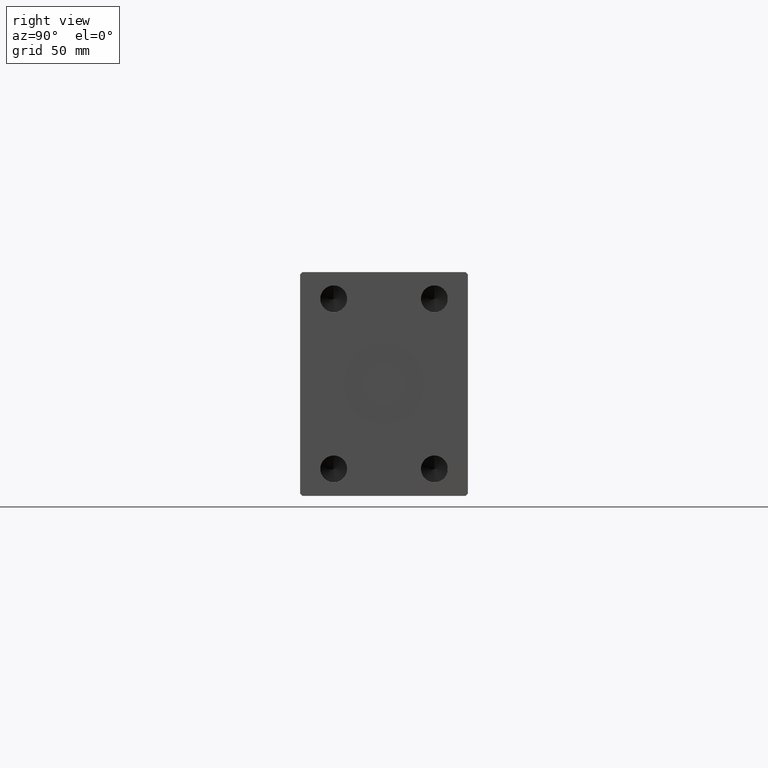
[diagram: clean part render]
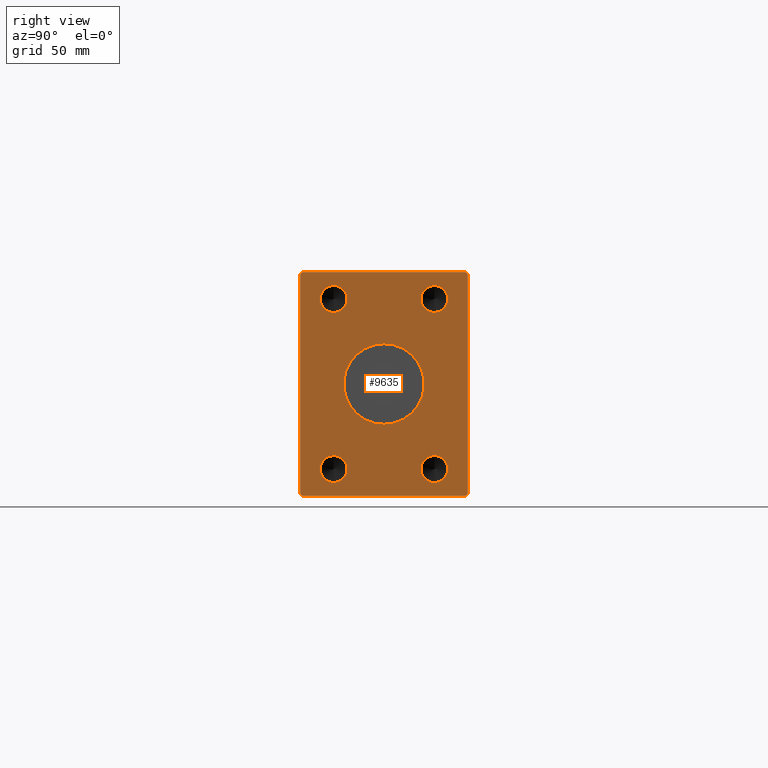
[diagram: same view with one face highlighted and labeled with its STEP entity id]
A machine part, right view. The second image highlights one B-rep face of the part: STEP entity #9635.
In plain terms, the highlighted planar face has unit normal (1, 0, 0).
Its self-contained STEP definition (entity closure, byte-faithful):
#472 = ORIENTED_EDGE ( 'NONE', *, *, #42329, .T. ) ;
#759 = EDGE_CURVE ( 'NONE', #37354, #40215, #26945, .T. ) ;
#867 = EDGE_CURVE ( 'NONE', #19377, #40171, #22664, .T. ) ;
#1045 = VERTEX_POINT ( 'NONE', #13690 ) ;
#1866 = ORIENTED_EDGE ( 'NONE', *, *, #759, .F. ) ;
#2047 = AXIS2_PLACEMENT_3D ( 'NONE', #17476, #31171, #21955 ) ;
#2261 = CARTESIAN_POINT ( 'NONE',  ( 262.0000000000000000, 37.50000000000000711, -49.00000000000000000 ) ) ;
#2478 = DIRECTION ( 'NONE',  ( 1.000000000000000000, -0.000000000000000000, -0.000000000000000000 ) ) ;
#2784 = DIRECTION ( 'NONE',  ( 1.000000000000000000, 0.000000000000000000, 0.000000000000000000 ) ) ;
#3154 = ORIENTED_EDGE ( 'NONE', *, *, #11692, .T. ) ;
#3195 = CARTESIAN_POINT ( 'NONE',  ( 262.0000000000000000, 36.50000000000000711, -50.00000000000000000 ) ) ;
#3367 = DIRECTION ( 'NONE',  ( 0.000000000000000000, -0.7071067811865474617, 0.7071067811865474617 ) ) ;
#3427 = VERTEX_POINT ( 'NONE', #37540 ) ;
#3794 = ORIENTED_EDGE ( 'NONE', *, *, #10537, .F. ) ;
#5177 = ORIENTED_EDGE ( 'NONE', *, *, #32614, .F. ) ;
#5633 = VERTEX_POINT ( 'NONE', #33251 ) ;
#5672 = CIRCLE ( 'NONE', #19322, 5.999999999999998224 ) ;
#5887 = AXIS2_PLACEMENT_3D ( 'NONE', #20162, #17678, #34976 ) ;
#5973 = CARTESIAN_POINT ( 'NONE',  ( 262.0000000000000000, 22.50000000000000000, -32.00000000000000000 ) ) ;
#6314 = CARTESIAN_POINT ( 'NONE',  ( 262.0000000000000000, -36.50000000000001421, 49.99999999999998579 ) ) ;
#6323 = VERTEX_POINT ( 'NONE', #24354 ) ;
#6595 = VERTEX_POINT ( 'NONE', #39508 ) ;
#6667 = ORIENTED_EDGE ( 'NONE', *, *, #39701, .T. ) ;
#7895 = CARTESIAN_POINT ( 'NONE',  ( 262.0000000000000000, 22.50000000000000000, -44.00000000000000000 ) ) ;
#7902 = ORIENTED_EDGE ( 'NONE', *, *, #36248, .F. ) ;
#8164 = EDGE_CURVE ( 'NONE', #36660, #5633, #9680, .T. ) ;
#8314 = CARTESIAN_POINT ( 'NONE',  ( 262.0000000000000000, -22.50000000000000000, -38.00000000000000711 ) ) ;
#8348 = LINE ( 'NONE', #21639, #16891 ) ;
#8352 = VECTOR ( 'NONE', #15422, 1000.000000000000000 ) ;
#8794 = DIRECTION ( 'NONE',  ( 1.000000000000000000, -0.000000000000000000, -0.000000000000000000 ) ) ;
#8996 = DIRECTION ( 'NONE',  ( 0.000000000000000000, 0.000000000000000000, 1.000000000000000000 ) ) ;
#9502 = CARTESIAN_POINT ( 'NONE',  ( 262.0000000000000000, -22.50000000000000000, 32.00000000000000000 ) ) ;
#9635 = ADVANCED_FACE ( 'NONE', ( #44461, #30952, #13644, #41093, #27578, #10497 ), #34552, .T. ) ;
#9680 = LINE ( 'NONE', #6314, #24994 ) ;
#9857 = CIRCLE ( 'NONE', #15625, 5.999999999999998224 ) ;
#9887 = ORIENTED_EDGE ( 'NONE', *, *, #41818, .F. ) ;
#10067 = DIRECTION ( 'NONE',  ( 0.000000000000000000, 0.7071067811865474617, 0.7071067811865474617 ) ) ;
#10105 = VERTEX_POINT ( 'NONE', #26112 ) ;
#10388 = VERTEX_POINT ( 'NONE', #30907 ) ;
#10497 = FACE_OUTER_BOUND ( 'NONE', #39523, .T. ) ;
#10537 = EDGE_CURVE ( 'NONE', #3427, #12325, #5672, .T. ) ;
#10933 = CIRCLE ( 'NONE', #5887, 5.999999999999998224 ) ;
#11103 = CIRCLE ( 'NONE', #36937, 18.00000000000000000 ) ;
#11692 = EDGE_CURVE ( 'NONE', #6595, #27862, #17661, .T. ) ;
#11933 = CARTESIAN_POINT ( 'NONE',  ( 262.0000000000000000, 22.50000000000000000, 32.00000000000000000 ) ) ;
#12325 = VERTEX_POINT ( 'NONE', #9502 ) ;
#12456 = DIRECTION ( 'NONE',  ( 0.000000000000000000, 0.000000000000000000, -1.000000000000000000 ) ) ;
#12804 = CARTESIAN_POINT ( 'NONE',  ( 262.0000000000000000, 22.50000000000000000, -38.00000000000000000 ) ) ;
#13644 = FACE_BOUND ( 'NONE', #20276, .T. ) ;
#13690 = CARTESIAN_POINT ( 'NONE',  ( 262.0000000000000000, 36.50000000000000711, 50.00000000000000000 ) ) ;
#13947 = CARTESIAN_POINT ( 'NONE',  ( 262.0000000000000000, -22.50000000000000000, -32.00000000000000711 ) ) ;
#15422 = DIRECTION ( 'NONE',  ( 0.000000000000000000, -1.000000000000000000, -1.901066822988281457E-16 ) ) ;
#15625 = AXIS2_PLACEMENT_3D ( 'NONE', #39621, #8794, #36002 ) ;
#16201 = DIRECTION ( 'NONE',  ( 0.000000000000000000, 0.000000000000000000, -1.000000000000000000 ) ) ;
#16873 = CARTESIAN_POINT ( 'NONE',  ( 262.0000000000000000, 37.50000000000000711, 49.00000000000000000 ) ) ;
#16891 = VECTOR ( 'NONE', #35548, 1000.000000000000000 ) ;
#17476 = CARTESIAN_POINT ( 'NONE',  ( 262.0000000000000000, 0.000000000000000000, 0.000000000000000000 ) ) ;
#17661 = LINE ( 'NONE', #20810, #33712 ) ;
#17678 = DIRECTION ( 'NONE',  ( 1.000000000000000000, -0.000000000000000000, -0.000000000000000000 ) ) ;
#18359 = AXIS2_PLACEMENT_3D ( 'NONE', #23121, #36820, #19519 ) ;
#18568 = LINE ( 'NONE', #29361, #8352 ) ;
#18924 = EDGE_CURVE ( 'NONE', #10388, #1045, #22965, .T. ) ;
#18939 = DIRECTION ( 'NONE',  ( 0.000000000000000000, 1.000000000000000000, 0.000000000000000000 ) ) ;
#19071 = VECTOR ( 'NONE', #8996, 1000.000000000000000 ) ;
#19322 = AXIS2_PLACEMENT_3D ( 'NONE', #33350, #19638, #12456 ) ;
#19377 = VERTEX_POINT ( 'NONE', #5973 ) ;
#19519 = DIRECTION ( 'NONE',  ( 0.000000000000000000, 0.000000000000000000, -1.000000000000000000 ) ) ;
#19638 = DIRECTION ( 'NONE',  ( 1.000000000000000000, -0.000000000000000000, -0.000000000000000000 ) ) ;
#20162 = CARTESIAN_POINT ( 'NONE',  ( 262.0000000000000000, 22.50000000000000000, 38.00000000000000000 ) ) ;
#20276 = EDGE_LOOP ( 'NONE', ( #25717, #1866 ) ) ;
#20727 = CARTESIAN_POINT ( 'NONE',  ( 262.0000000000000000, 37.50000000000000711, -49.00000000000000000 ) ) ;
#20810 = CARTESIAN_POINT ( 'NONE',  ( 262.0000000000000000, -37.50000000000001421, -49.00000000000000000 ) ) ;
#21077 = CARTESIAN_POINT ( 'NONE',  ( 262.0000000000000000, 2.204364238465235428E-15, 18.00000000000000000 ) ) ;
#21639 = CARTESIAN_POINT ( 'NONE',  ( 262.0000000000000000, -37.50000000000001421, 48.99999999999998579 ) ) ;
#21916 = LINE ( 'NONE', #40889, #24956 ) ;
#21955 = DIRECTION ( 'NONE',  ( 0.000000000000000000, 0.000000000000000000, -1.000000000000000000 ) ) ;
#22314 = ORIENTED_EDGE ( 'NONE', *, *, #30149, .F. ) ;
#22502 = EDGE_LOOP ( 'NONE', ( #9887, #3794 ) ) ;
#22664 = CIRCLE ( 'NONE', #28394, 5.999999999999998224 ) ;
#22841 = EDGE_LOOP ( 'NONE', ( #36868, #25038 ) ) ;
#22965 = LINE ( 'NONE', #16873, #39545 ) ;
#23121 = CARTESIAN_POINT ( 'NONE',  ( 262.0000000000000000, 22.50000000000000000, -38.00000000000000000 ) ) ;
#23319 = EDGE_CURVE ( 'NONE', #28720, #10105, #10933, .T. ) ;
#23381 = VECTOR ( 'NONE', #18939, 1000.000000000000000 ) ;
#24115 = DIRECTION ( 'NONE',  ( 0.000000000000000000, 0.000000000000000000, -1.000000000000000000 ) ) ;
#24181 = LINE ( 'NONE', #25457, #23381 ) ;
#24217 = AXIS2_PLACEMENT_3D ( 'NONE', #30126, #2478, #16201 ) ;
#24354 = CARTESIAN_POINT ( 'NONE',  ( 262.0000000000000000, 0.000000000000000000, -18.00000000000000000 ) ) ;
#24956 = VECTOR ( 'NONE', #10067, 1000.000000000000114 ) ;
#24994 = VECTOR ( 'NONE', #40076, 1000.000000000000114 ) ;
#25038 = ORIENTED_EDGE ( 'NONE', *, *, #867, .F. ) ;
#25304 = AXIS2_PLACEMENT_3D ( 'NONE', #44467, #31177, #34333 ) ;
#25457 = CARTESIAN_POINT ( 'NONE',  ( 262.0000000000000000, -36.50000000000000711, -50.00000000000000000 ) ) ;
#25717 = ORIENTED_EDGE ( 'NONE', *, *, #41320, .F. ) ;
#26112 = CARTESIAN_POINT ( 'NONE',  ( 262.0000000000000000, 22.50000000000000000, 44.00000000000000000 ) ) ;
#26407 = CIRCLE ( 'NONE', #24217, 5.999999999999998224 ) ;
#26945 = CIRCLE ( 'NONE', #34837, 5.999999999999998224 ) ;
#27492 = EDGE_LOOP ( 'NONE', ( #33300, #22314 ) ) ;
#27578 = FACE_BOUND ( 'NONE', #22502, .T. ) ;
#27626 = ORIENTED_EDGE ( 'NONE', *, *, #8164, .T. ) ;
#27678 = CARTESIAN_POINT ( 'NONE',  ( 262.0000000000000000, -36.50000000000000711, -50.00000000000000000 ) ) ;
#27717 = EDGE_CURVE ( 'NONE', #5633, #6595, #8348, .T. ) ;
#27771 = DIRECTION ( 'NONE',  ( 0.000000000000000000, 0.7071067811865500152, -0.7071067811865451302 ) ) ;
#27862 = VERTEX_POINT ( 'NONE', #27678 ) ;
#28394 = AXIS2_PLACEMENT_3D ( 'NONE', #12804, #43838, #40473 ) ;
#28720 = VERTEX_POINT ( 'NONE', #11933 ) ;
#28795 = EDGE_CURVE ( 'NONE', #40200, #10388, #33718, .T. ) ;
#29038 = EDGE_CURVE ( 'NONE', #40171, #19377, #31979, .T. ) ;
#29238 = EDGE_LOOP ( 'NONE', ( #5177, #7902 ) ) ;
#29361 = CARTESIAN_POINT ( 'NONE',  ( 262.0000000000000000, 36.50000000000000711, 50.00000000000000000 ) ) ;
#29771 = DIRECTION ( 'NONE',  ( 0.000000000000000000, 0.000000000000000000, -1.000000000000000000 ) ) ;
#30126 = CARTESIAN_POINT ( 'NONE',  ( 262.0000000000000000, -22.50000000000000000, -38.00000000000000711 ) ) ;
#30149 = EDGE_CURVE ( 'NONE', #10105, #28720, #31766, .T. ) ;
#30381 = CIRCLE ( 'NONE', #41906, 18.00000000000000000 ) ;
#30436 = VERTEX_POINT ( 'NONE', #21077 ) ;
#30907 = CARTESIAN_POINT ( 'NONE',  ( 262.0000000000000000, 37.50000000000000711, 49.00000000000000000 ) ) ;
#30952 = FACE_BOUND ( 'NONE', #27492, .T. ) ;
#31171 = DIRECTION ( 'NONE',  ( 1.000000000000000000, 0.000000000000000000, 0.000000000000000000 ) ) ;
#31177 = DIRECTION ( 'NONE',  ( 1.000000000000000000, -0.000000000000000000, -0.000000000000000000 ) ) ;
#31766 = CIRCLE ( 'NONE', #25304, 5.999999999999998224 ) ;
#31979 = CIRCLE ( 'NONE', #18359, 5.999999999999998224 ) ;
#32614 = EDGE_CURVE ( 'NONE', #6323, #30436, #30381, .T. ) ;
#33251 = CARTESIAN_POINT ( 'NONE',  ( 262.0000000000000000, -37.50000000000001421, 48.99999999999998579 ) ) ;
#33300 = ORIENTED_EDGE ( 'NONE', *, *, #23319, .F. ) ;
#33350 = CARTESIAN_POINT ( 'NONE',  ( 262.0000000000000000, -22.50000000000000000, 38.00000000000000000 ) ) ;
#33712 = VECTOR ( 'NONE', #27771, 1000.000000000000114 ) ;
#33718 = LINE ( 'NONE', #2261, #19071 ) ;
#34124 = ORIENTED_EDGE ( 'NONE', *, *, #27717, .T. ) ;
#34333 = DIRECTION ( 'NONE',  ( 0.000000000000000000, 0.000000000000000000, -1.000000000000000000 ) ) ;
#34552 = PLANE ( 'NONE',  #2047 ) ;
#34837 = AXIS2_PLACEMENT_3D ( 'NONE', #8314, #35308, #36194 ) ;
#34976 = DIRECTION ( 'NONE',  ( 0.000000000000000000, 0.000000000000000000, -1.000000000000000000 ) ) ;
#35308 = DIRECTION ( 'NONE',  ( 1.000000000000000000, -0.000000000000000000, -0.000000000000000000 ) ) ;
#35548 = DIRECTION ( 'NONE',  ( 0.000000000000000000, 0.000000000000000000, -1.000000000000000000 ) ) ;
#36002 = DIRECTION ( 'NONE',  ( 0.000000000000000000, 0.000000000000000000, -1.000000000000000000 ) ) ;
#36194 = DIRECTION ( 'NONE',  ( 0.000000000000000000, 0.000000000000000000, -1.000000000000000000 ) ) ;
#36202 = CARTESIAN_POINT ( 'NONE',  ( 262.0000000000000000, -22.50000000000000000, -44.00000000000000711 ) ) ;
#36248 = EDGE_CURVE ( 'NONE', #30436, #6323, #11103, .T. ) ;
#36660 = VERTEX_POINT ( 'NONE', #37953 ) ;
#36820 = DIRECTION ( 'NONE',  ( 1.000000000000000000, -0.000000000000000000, -0.000000000000000000 ) ) ;
#36868 = ORIENTED_EDGE ( 'NONE', *, *, #29038, .F. ) ;
#36937 = AXIS2_PLACEMENT_3D ( 'NONE', #40998, #38280, #24115 ) ;
#37084 = EDGE_CURVE ( 'NONE', #27862, #40983, #24181, .T. ) ;
#37354 = VERTEX_POINT ( 'NONE', #13947 ) ;
#37540 = CARTESIAN_POINT ( 'NONE',  ( 262.0000000000000000, -22.50000000000000000, 44.00000000000000000 ) ) ;
#37953 = CARTESIAN_POINT ( 'NONE',  ( 262.0000000000000000, -36.50000000000001421, 49.99999999999998579 ) ) ;
#37988 = ORIENTED_EDGE ( 'NONE', *, *, #37084, .T. ) ;
#38280 = DIRECTION ( 'NONE',  ( 1.000000000000000000, 0.000000000000000000, 0.000000000000000000 ) ) ;
#38853 = ORIENTED_EDGE ( 'NONE', *, *, #18924, .T. ) ;
#39508 = CARTESIAN_POINT ( 'NONE',  ( 262.0000000000000000, -37.50000000000001421, -49.00000000000000000 ) ) ;
#39523 = EDGE_LOOP ( 'NONE', ( #38853, #6667, #27626, #34124, #3154, #37988, #472, #41596 ) ) ;
#39545 = VECTOR ( 'NONE', #3367, 1000.000000000000114 ) ;
#39621 = CARTESIAN_POINT ( 'NONE',  ( 262.0000000000000000, -22.50000000000000000, 38.00000000000000000 ) ) ;
#39701 = EDGE_CURVE ( 'NONE', #1045, #36660, #18568, .T. ) ;
#40076 = DIRECTION ( 'NONE',  ( 0.000000000000000000, -0.7071067811865474617, -0.7071067811865474617 ) ) ;
#40171 = VERTEX_POINT ( 'NONE', #7895 ) ;
#40200 = VERTEX_POINT ( 'NONE', #20727 ) ;
#40215 = VERTEX_POINT ( 'NONE', #36202 ) ;
#40473 = DIRECTION ( 'NONE',  ( 0.000000000000000000, 0.000000000000000000, -1.000000000000000000 ) ) ;
#40889 = CARTESIAN_POINT ( 'NONE',  ( 262.0000000000000000, 36.50000000000000711, -50.00000000000000000 ) ) ;
#40983 = VERTEX_POINT ( 'NONE', #3195 ) ;
#40998 = CARTESIAN_POINT ( 'NONE',  ( 262.0000000000000000, 0.000000000000000000, 0.000000000000000000 ) ) ;
#41093 = FACE_BOUND ( 'NONE', #22841, .T. ) ;
#41320 = EDGE_CURVE ( 'NONE', #40215, #37354, #26407, .T. ) ;
#41596 = ORIENTED_EDGE ( 'NONE', *, *, #28795, .T. ) ;
#41818 = EDGE_CURVE ( 'NONE', #12325, #3427, #9857, .T. ) ;
#41906 = AXIS2_PLACEMENT_3D ( 'NONE', #43060, #2784, #29771 ) ;
#42329 = EDGE_CURVE ( 'NONE', #40983, #40200, #21916, .T. ) ;
#43060 = CARTESIAN_POINT ( 'NONE',  ( 262.0000000000000000, 0.000000000000000000, 0.000000000000000000 ) ) ;
#43838 = DIRECTION ( 'NONE',  ( 1.000000000000000000, -0.000000000000000000, -0.000000000000000000 ) ) ;
#44461 = FACE_BOUND ( 'NONE', #29238, .T. ) ;
#44467 = CARTESIAN_POINT ( 'NONE',  ( 262.0000000000000000, 22.50000000000000000, 38.00000000000000000 ) ) ;